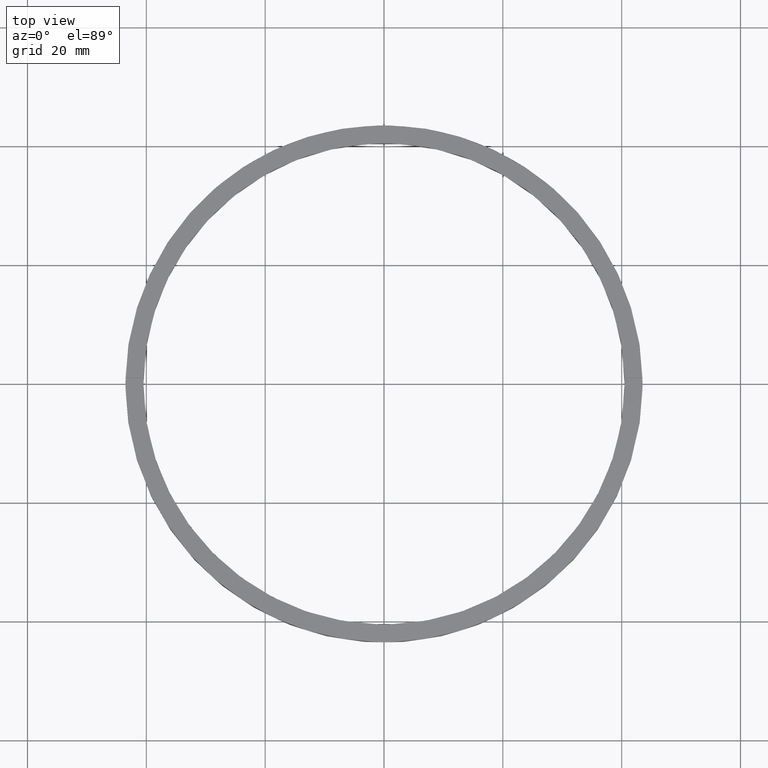
[diagram: clean part render]
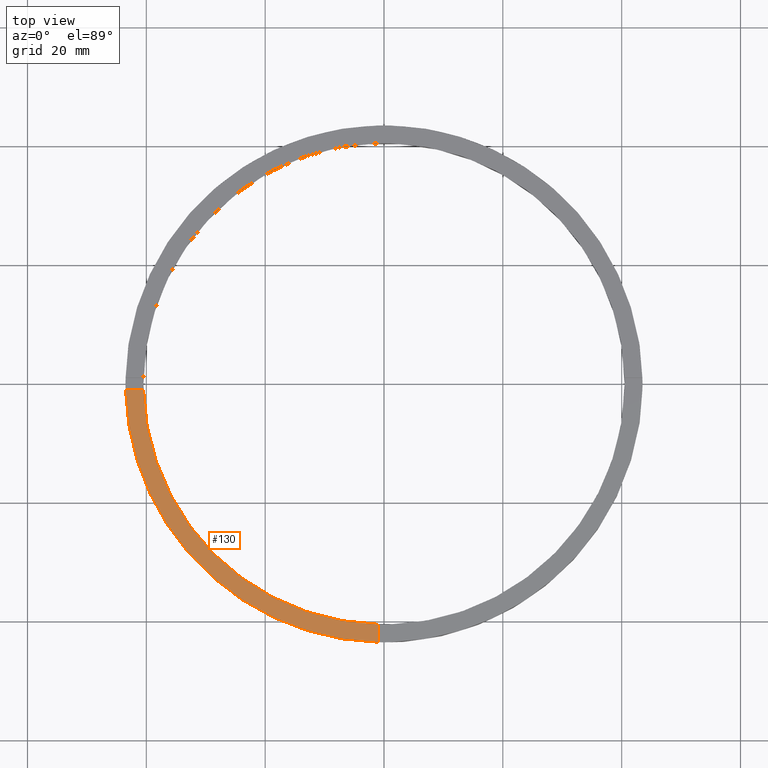
[diagram: same view with one face highlighted and labeled with its STEP entity id]
A machine part, top view. The second image highlights one B-rep face of the part: STEP entity #130.
In plain terms, the highlighted planar face has unit normal (0, 0, 1).
Its self-contained STEP definition (entity closure, byte-faithful):
#37 = ORIENTED_EDGE ( 'NONE', *, *, #123, .T. ) ;
#54 = CIRCLE ( 'NONE', #364, 43.50000000000000000 ) ;
#93 = DIRECTION ( 'NONE',  ( 1.000000000000000000, 0.000000000000000000, 0.000000000000000000 ) ) ;
#115 = CARTESIAN_POINT ( 'NONE',  ( 0.000000000000000000, 0.000000000000000000, 4.000000000000000000 ) ) ;
#123 = EDGE_CURVE ( 'NONE', #752, #420, #54, .T. ) ;
#130 = ADVANCED_FACE ( 'NONE', ( #277 ), #156, .T. ) ;
#155 = VERTEX_POINT ( 'NONE', #372 ) ;
#156 = PLANE ( 'NONE',  #637 ) ;
#172 = EDGE_LOOP ( 'NONE', ( #257, #588, #721, #37 ) ) ;
#191 = LINE ( 'NONE', #313, #725 ) ;
#216 = CARTESIAN_POINT ( 'NONE',  ( 0.000000000000000000, 0.000000000000000000, 4.000000000000000000 ) ) ;
#252 = EDGE_CURVE ( 'NONE', #752, #460, #334, .T. ) ;
#257 = ORIENTED_EDGE ( 'NONE', *, *, #393, .F. ) ;
#277 = FACE_OUTER_BOUND ( 'NONE', #172, .T. ) ;
#287 = CARTESIAN_POINT ( 'NONE',  ( -43.48850422812906658, -1.000000000000029532, 4.000000000000000000 ) ) ;
#313 = CARTESIAN_POINT ( 'NONE',  ( -1.000000000000159650, -33.50000000000017764, 4.000000000000000000 ) ) ;
#320 = VECTOR ( 'NONE', #758, 1000.000000000000000 ) ;
#321 = CIRCLE ( 'NONE', #387, 40.50000000000000000 ) ;
#334 = LINE ( 'NONE', #366, #320 ) ;
#357 = DIRECTION ( 'NONE',  ( 1.301042606982605074E-16, -1.000000000000000000, 0.000000000000000000 ) ) ;
#364 = AXIS2_PLACEMENT_3D ( 'NONE', #709, #645, #93 ) ;
#366 = CARTESIAN_POINT ( 'NONE',  ( -33.50000000000018474, -1.000000000000027534, 4.000000000000000000 ) ) ;
#372 = CARTESIAN_POINT ( 'NONE',  ( -1.000000000000158762, -40.48765243873741326, 4.000000000000000000 ) ) ;
#387 = AXIS2_PLACEMENT_3D ( 'NONE', #115, #643, #392 ) ;
#392 = DIRECTION ( 'NONE',  ( 1.000000000000000000, 0.000000000000000000, 0.000000000000000000 ) ) ;
#393 = EDGE_CURVE ( 'NONE', #155, #420, #191, .T. ) ;
#400 = CARTESIAN_POINT ( 'NONE',  ( -40.48765243873741326, -1.000000000000028866, 4.000000000000000000 ) ) ;
#420 = VERTEX_POINT ( 'NONE', #652 ) ;
#460 = VERTEX_POINT ( 'NONE', #400 ) ;
#540 = DIRECTION ( 'NONE',  ( 0.000000000000000000, 0.000000000000000000, 1.000000000000000000 ) ) ;
#588 = ORIENTED_EDGE ( 'NONE', *, *, #706, .F. ) ;
#622 = DIRECTION ( 'NONE',  ( 1.000000000000000000, 0.000000000000000000, -0.000000000000000000 ) ) ;
#637 = AXIS2_PLACEMENT_3D ( 'NONE', #216, #540, #622 ) ;
#643 = DIRECTION ( 'NONE',  ( 0.000000000000000000, 0.000000000000000000, 1.000000000000000000 ) ) ;
#645 = DIRECTION ( 'NONE',  ( 0.000000000000000000, 0.000000000000000000, 1.000000000000000000 ) ) ;
#652 = CARTESIAN_POINT ( 'NONE',  ( -1.000000000000158318, -43.48850422812905947, 4.000000000000000000 ) ) ;
#706 = EDGE_CURVE ( 'NONE', #460, #155, #321, .T. ) ;
#709 = CARTESIAN_POINT ( 'NONE',  ( 0.000000000000000000, 0.000000000000000000, 4.000000000000000000 ) ) ;
#721 = ORIENTED_EDGE ( 'NONE', *, *, #252, .F. ) ;
#725 = VECTOR ( 'NONE', #357, 1000.000000000000000 ) ;
#752 = VERTEX_POINT ( 'NONE', #287 ) ;
#758 = DIRECTION ( 'NONE',  ( 1.000000000000000000, 1.951563910473907735E-16, -0.000000000000000000 ) ) ;